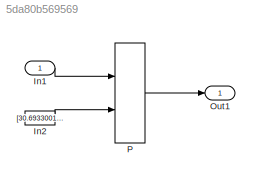
MODEL slx_5da80b569569
KIND model
CONFIG AbsTol = auto
CONFIG EnableMultiTasking = off
CONFIG FixedStep = auto
CONFIG MaxStep = auto
CONFIG MinStep = auto
CONFIG RelTol = 1e-3
CONFIG SampleTimeConstraint = Unconstrained
CONFIG Solver = FixedStepDiscrete
CONFIG SolverName = FixedStepDiscrete
CONFIG StartTime = 0.0
CONFIG StopTime = 10.0
BLOCK [Inport] In1
  IconDisplay = Port number
  OutDataTypeStr = single
  PortDimensions = 1
BLOCK [Constant] In2
  Value = [30.6933001757361 32.1933001757361 33.6933001757361 35.1933001757361 36.6933001757361 38.1933001757361 39.6933001757361 41.1933001757361 42.6933001757361]
BLOCK [Outport] Out1
  IconDisplay = Port number
BLOCK [PreLookup] P
  BreakpointDataTypeStr = uint16
  BreakpointsData = [10:10:110]
  BreakpointsDataSource = Input port
  FractionDataTypeStr = single
  IndexSearchMethod = Linear search
  InputPortMap = u0,p1
  OutputSelection = Index only
  Ports = [2, 1]
  RndMeth = Nearest
  UseLastBreakpoint = on
LINE In1:1 -> P:1
LINE In2:1 -> P:2
LINE P:1 -> Out1:1
